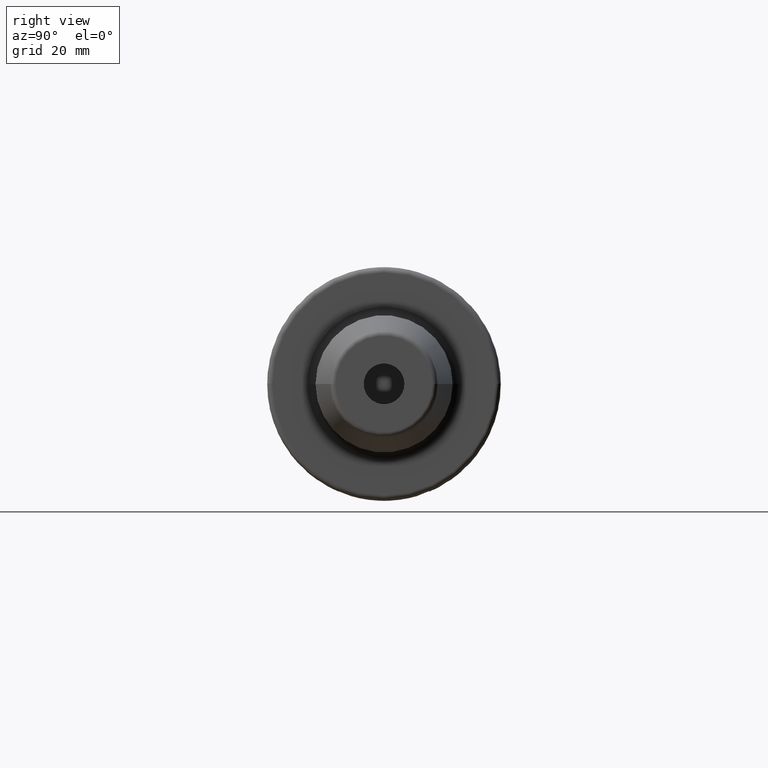
[diagram: clean part render]
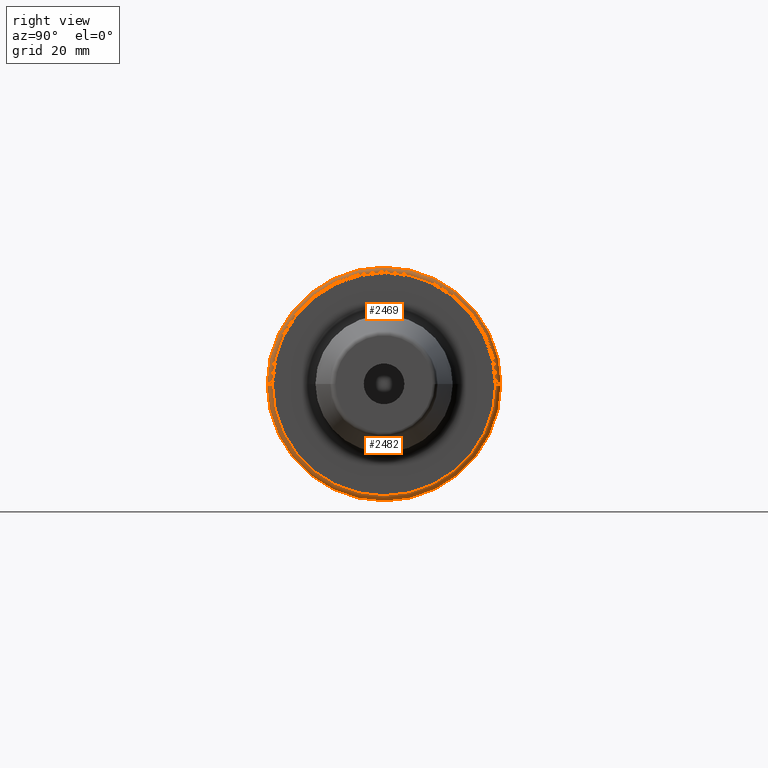
[diagram: same view with one multi-face feature highlighted, each face labeled with its STEP entity id]
A machine part, right view. The highlighted faces form ONE feature: a constant-radius fillet chain: 2 tangent blend faces with common blend radius 1 mm. The faces share edges in the B-rep.
Their STEP definitions:
[1] entity #2469 (Torus):
#778=CARTESIAN_POINT('',(2.1E1,0.E0,0.E0));
#779=DIRECTION('',(1.E0,0.E0,0.E0));
#780=DIRECTION('',(0.E0,1.E0,0.E0));
#781=AXIS2_PLACEMENT_3D('',#778,#779,#780);
#802=CARTESIAN_POINT('',(2.2E1,0.E0,0.E0));
#803=DIRECTION('',(1.E0,0.E0,0.E0));
#804=DIRECTION('',(0.E0,1.E0,0.E0));
#805=AXIS2_PLACEMENT_3D('',#802,#803,#804);
#807=CARTESIAN_POINT('',(2.1E1,2.199E1,0.E0));
#808=DIRECTION('',(0.E0,0.E0,1.E0));
#809=DIRECTION('',(1.E0,0.E0,0.E0));
#810=AXIS2_PLACEMENT_3D('',#807,#808,#809);
#812=CARTESIAN_POINT('',(2.1E1,-2.199E1,0.E0));
#813=DIRECTION('',(0.E0,0.E0,-1.E0));
#814=DIRECTION('',(1.E0,0.E0,0.E0));
#815=AXIS2_PLACEMENT_3D('',#812,#813,#814);
#1220=CARTESIAN_POINT('',(2.1E1,2.299E1,0.E0));
#1221=VERTEX_POINT('',#1220);
#1222=CARTESIAN_POINT('',(2.1E1,-2.299E1,0.E0));
#1223=VERTEX_POINT('',#1222);
#1290=CARTESIAN_POINT('',(2.2E1,2.199E1,0.E0));
#1291=VERTEX_POINT('',#1290);
#1292=CARTESIAN_POINT('',(2.2E1,-2.199E1,0.E0));
#1293=VERTEX_POINT('',#1292);
#2455=CARTESIAN_POINT('',(2.1E1,0.E0,0.E0));
#2456=DIRECTION('',(1.E0,0.E0,0.E0));
#2457=DIRECTION('',(0.E0,-1.E0,0.E0));
#2458=AXIS2_PLACEMENT_3D('',#2455,#2456,#2457);
#2459=TOROIDAL_SURFACE('',#2458,2.199E1,1.E0);
#2461=ORIENTED_EDGE('',*,*,#2460,.F.);
#2463=ORIENTED_EDGE('',*,*,#2462,.T.);
#2465=ORIENTED_EDGE('',*,*,#2464,.T.);
#2466=ORIENTED_EDGE('',*,*,#2446,.F.);
#2467=EDGE_LOOP('',(#2461,#2463,#2465,#2466));
#2468=FACE_OUTER_BOUND('',#2467,.F.);
#2469=ADVANCED_FACE('',(#2468),#2459,.T.);
#782=CIRCLE('',#781,2.299E1);
#806=CIRCLE('',#805,2.199E1);
#811=CIRCLE('',#810,1.E0);
#816=CIRCLE('',#815,1.E0);
#2446=EDGE_CURVE('',#1221,#1223,#782,.T.);
#2460=EDGE_CURVE('',#1291,#1221,#811,.T.);
#2462=EDGE_CURVE('',#1291,#1293,#806,.T.);
#2464=EDGE_CURVE('',#1293,#1223,#816,.T.);
[2] entity #2482 (Torus):
#235=CARTESIAN_POINT('',(2.1E1,0.E0,0.E0));
#236=DIRECTION('',(-1.E0,0.E0,0.E0));
#237=DIRECTION('',(0.E0,1.E0,0.E0));
#238=AXIS2_PLACEMENT_3D('',#235,#236,#237);
#807=CARTESIAN_POINT('',(2.1E1,2.199E1,0.E0));
#808=DIRECTION('',(0.E0,0.E0,1.E0));
#809=DIRECTION('',(1.E0,0.E0,0.E0));
#810=AXIS2_PLACEMENT_3D('',#807,#808,#809);
#812=CARTESIAN_POINT('',(2.1E1,-2.199E1,0.E0));
#813=DIRECTION('',(0.E0,0.E0,-1.E0));
#814=DIRECTION('',(1.E0,0.E0,0.E0));
#815=AXIS2_PLACEMENT_3D('',#812,#813,#814);
#817=CARTESIAN_POINT('',(2.2E1,0.E0,0.E0));
#818=DIRECTION('',(-1.E0,0.E0,0.E0));
#819=DIRECTION('',(0.E0,1.E0,0.E0));
#820=AXIS2_PLACEMENT_3D('',#817,#818,#819);
#1220=CARTESIAN_POINT('',(2.1E1,2.299E1,0.E0));
#1221=VERTEX_POINT('',#1220);
#1222=CARTESIAN_POINT('',(2.1E1,-2.299E1,0.E0));
#1223=VERTEX_POINT('',#1222);
#1290=CARTESIAN_POINT('',(2.2E1,2.199E1,0.E0));
#1291=VERTEX_POINT('',#1290);
#1292=CARTESIAN_POINT('',(2.2E1,-2.199E1,0.E0));
#1293=VERTEX_POINT('',#1292);
#2470=CARTESIAN_POINT('',(2.1E1,0.E0,0.E0));
#2471=DIRECTION('',(1.E0,0.E0,0.E0));
#2472=DIRECTION('',(0.E0,-1.E0,0.E0));
#2473=AXIS2_PLACEMENT_3D('',#2470,#2471,#2472);
#2474=TOROIDAL_SURFACE('',#2473,2.199E1,1.E0);
#2475=ORIENTED_EDGE('',*,*,#2460,.T.);
#2476=ORIENTED_EDGE('',*,*,#1714,.T.);
#2477=ORIENTED_EDGE('',*,*,#2464,.F.);
#2479=ORIENTED_EDGE('',*,*,#2478,.F.);
#2480=EDGE_LOOP('',(#2475,#2476,#2477,#2479));
#2481=FACE_OUTER_BOUND('',#2480,.F.);
#2482=ADVANCED_FACE('',(#2481),#2474,.T.);
#239=CIRCLE('',#238,2.299E1);
#811=CIRCLE('',#810,1.E0);
#816=CIRCLE('',#815,1.E0);
#821=CIRCLE('',#820,2.199E1);
#1714=EDGE_CURVE('',#1221,#1223,#239,.T.);
#2460=EDGE_CURVE('',#1291,#1221,#811,.T.);
#2464=EDGE_CURVE('',#1293,#1223,#816,.T.);
#2478=EDGE_CURVE('',#1291,#1293,#821,.T.);